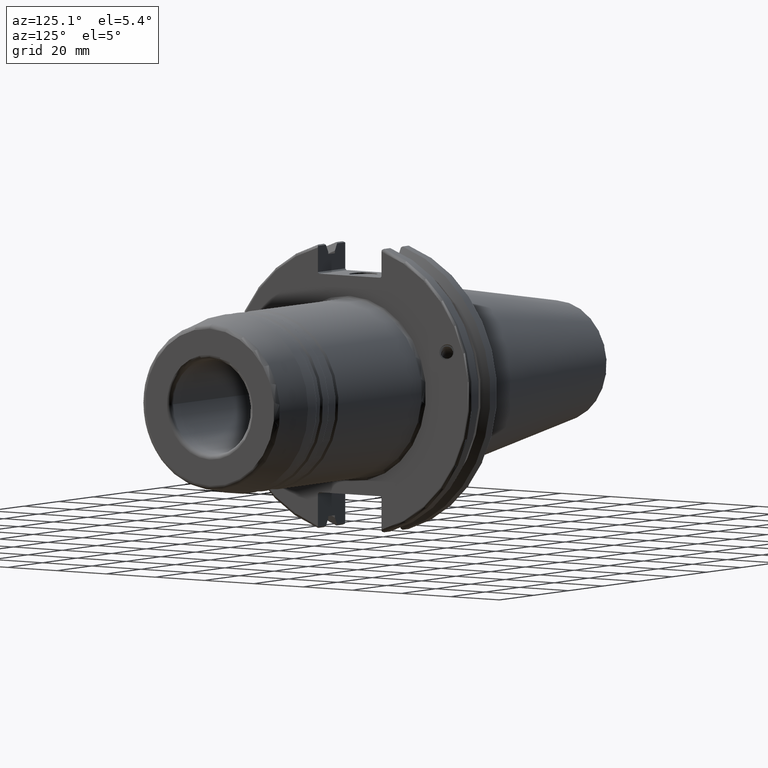
[diagram: clean part render]
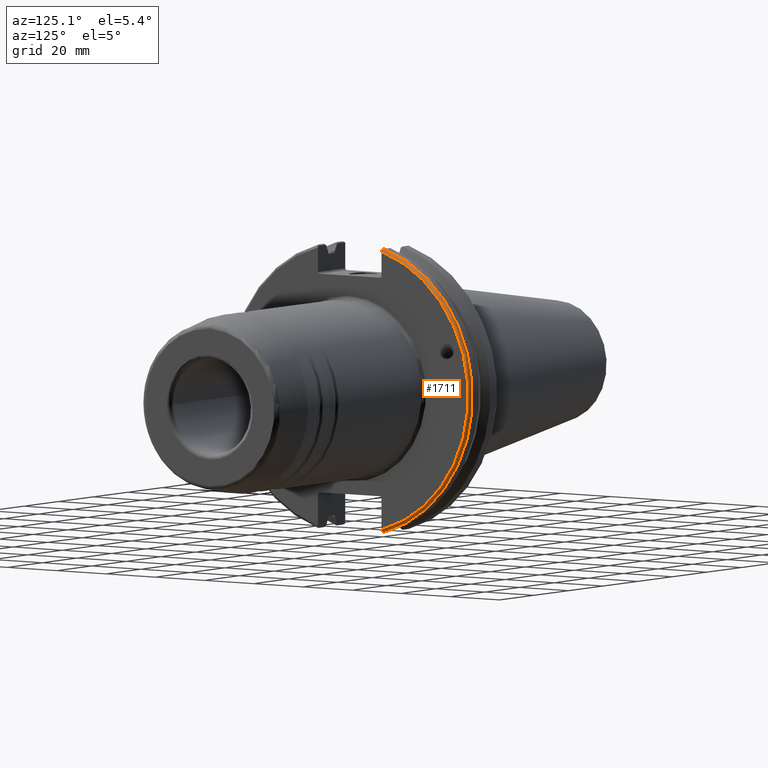
[diagram: same view with one face highlighted and labeled with its STEP entity id]
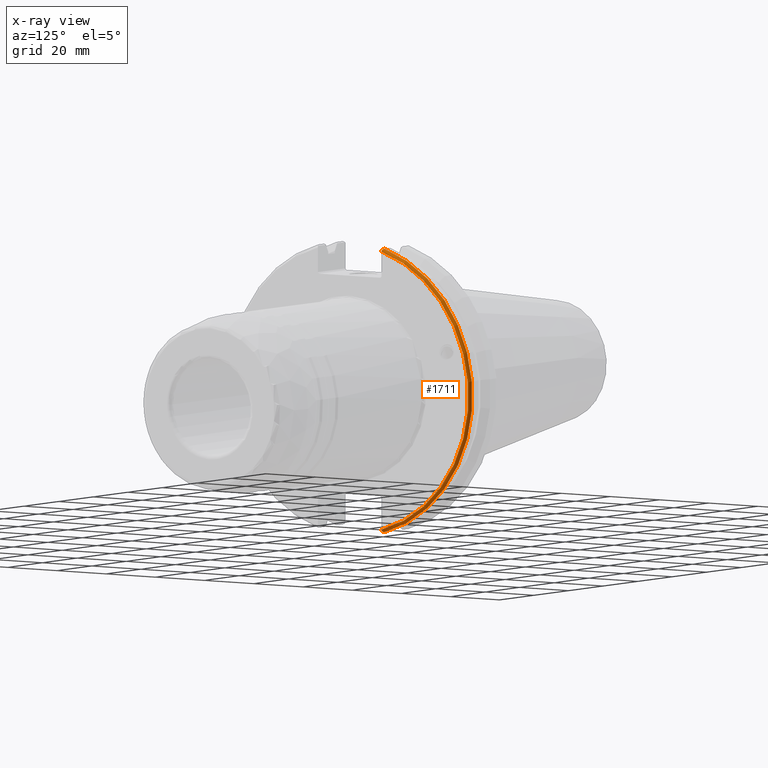
[diagram: x-ray of the same camera — body ghosted, the highlighted face saturated]
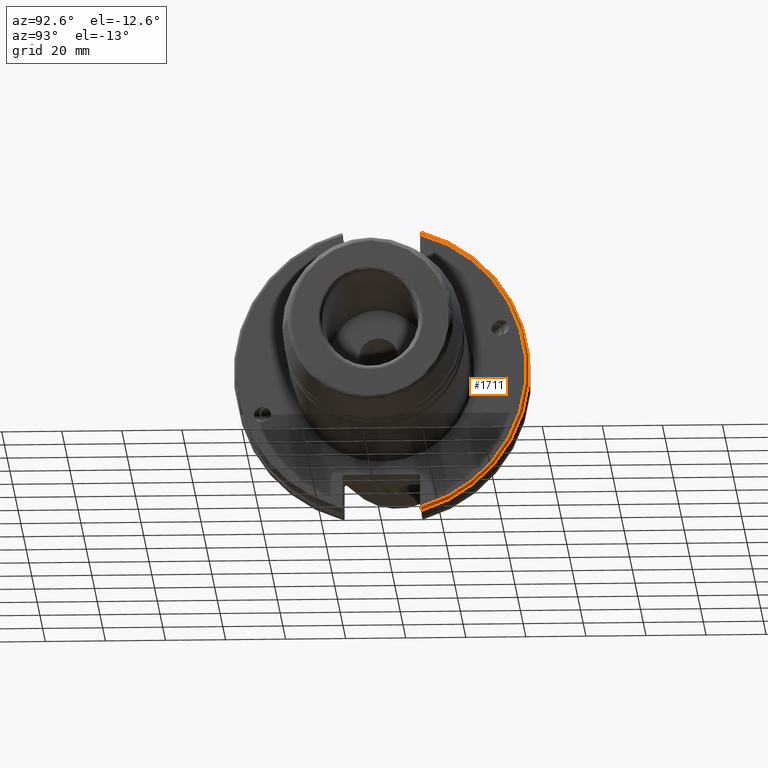
[diagram: same view with one face highlighted and labeled with its STEP entity id]
A machine part, auxiliary view. The second image highlights one B-rep face of the part: STEP entity #1711.
The next image is the same camera in x-ray: the body ghosted, the highlighted face saturated — about 0% of this face is hidden behind the body in this view.
A second angle (auxiliary view) of the same face is appended — the face is thin or edge-on in the first view.
In plain terms, the highlighted toroidal blend (fillet) surface has major radius 48.2125 mm and minor (blend) radius 1 mm.
Its self-contained STEP definition (entity closure, byte-faithful):
#35=B_SPLINE_CURVE_WITH_KNOTS('',3,(#2970,#2971,#2972,#2973,#2974,#2975),
 .UNSPECIFIED.,.F.,.F.,(4,2,4),(0.0976892167532868,0.112000071948293,0.150881870548587),
 .UNSPECIFIED.);
#36=B_SPLINE_CURVE_WITH_KNOTS('',3,(#2977,#2978,#2979,#2980,#2981,#2982),
 .UNSPECIFIED.,.F.,.F.,(4,2,4),(0.452859340315922,0.491741138916218,0.506051994111223),
 .UNSPECIFIED.);
#37=B_SPLINE_CURVE_WITH_KNOTS('',3,(#2984,#2985,#2986,#2987,#2988,#2989,
#2990,#2991),.UNSPECIFIED.,.F.,.F.,(4,2,2,4),(-0.104075769062722,-0.0730268503455479,
-0.0343639873656263,0.),.UNSPECIFIED.);
#38=B_SPLINE_CURVE_WITH_KNOTS('',3,(#2994,#2995,#2996,#2997,#2998,#2999,
#3000,#3001),.UNSPECIFIED.,.F.,.F.,(4,2,2,4),(0.,0.0343639873656263,0.0730268503455477,
0.104075769062723),.UNSPECIFIED.);
#99=TOROIDAL_SURFACE('',#1937,48.2125,1.);
#214=FACE_OUTER_BOUND('',#331,.T.);
#331=EDGE_LOOP('',(#1398,#1399,#1400,#1401,#1402,#1403));
#627=CIRCLE('',#1868,48.2125);
#650=CIRCLE('',#1938,49.2125);
#725=VERTEX_POINT('',#2715);
#726=VERTEX_POINT('',#2716);
#789=VERTEX_POINT('',#2969);
#790=VERTEX_POINT('',#2976);
#791=VERTEX_POINT('',#2983);
#792=VERTEX_POINT('',#2992);
#921=EDGE_CURVE('',#725,#726,#627,.T.);
#1006=EDGE_CURVE('',#789,#725,#35,.T.);
#1007=EDGE_CURVE('',#726,#790,#36,.T.);
#1008=EDGE_CURVE('',#790,#791,#37,.T.);
#1009=EDGE_CURVE('',#791,#792,#650,.T.);
#1010=EDGE_CURVE('',#792,#789,#38,.T.);
#1398=ORIENTED_EDGE('',*,*,#1006,.T.);
#1399=ORIENTED_EDGE('',*,*,#921,.T.);
#1400=ORIENTED_EDGE('',*,*,#1007,.T.);
#1401=ORIENTED_EDGE('',*,*,#1008,.T.);
#1402=ORIENTED_EDGE('',*,*,#1009,.T.);
#1403=ORIENTED_EDGE('',*,*,#1010,.T.);
#1711=ADVANCED_FACE('',(#214),#99,.T.);
#1868=AXIS2_PLACEMENT_3D('',#2717,#2202,#2203);
#1937=AXIS2_PLACEMENT_3D('',#2968,#2378,#2379);
#1938=AXIS2_PLACEMENT_3D('',#2993,#2380,#2381);
#2202=DIRECTION('center_axis',(-1.,0.,0.));
#2203=DIRECTION('ref_axis',(0.,1.,-6.12323399573677E-17));
#2378=DIRECTION('center_axis',(1.,0.,0.));
#2379=DIRECTION('ref_axis',(0.,0.,-1.));
#2380=DIRECTION('center_axis',(1.,0.,0.));
#2381=DIRECTION('ref_axis',(0.,1.,-6.12323399573677E-17));
#2715=CARTESIAN_POINT('',(19.05,12.95,46.4407434937254));
#2716=CARTESIAN_POINT('',(19.05,12.95,-46.4407434937254));
#2717=CARTESIAN_POINT('Origin',(19.05,0.,0.));
#2968=CARTESIAN_POINT('Origin',(18.05,0.,0.));
#2969=CARTESIAN_POINT('',(18.9055020570566,12.95,46.9780755322918));
#2970=CARTESIAN_POINT('Ctrl Pts',(18.9055020570566,12.95,46.9780755322918));
#2971=CARTESIAN_POINT('Ctrl Pts',(18.9315844351616,12.95,46.9333752207329));
#2972=CARTESIAN_POINT('Ctrl Pts',(18.9538432708766,12.95,46.887363294568));
#2973=CARTESIAN_POINT('Ctrl Pts',(19.0204646992875,12.95,46.7230464903732));
#2974=CARTESIAN_POINT('Ctrl Pts',(19.05,12.95,46.5703494890597));
#2975=CARTESIAN_POINT('Ctrl Pts',(19.05,12.95,46.4407434937254));
#2976=CARTESIAN_POINT('',(18.9055020570566,12.95,-46.9780755322918));
#2977=CARTESIAN_POINT('Ctrl Pts',(19.05,12.95,-46.4407434937254));
#2978=CARTESIAN_POINT('Ctrl Pts',(19.05,12.95,-46.5703494890597));
#2979=CARTESIAN_POINT('Ctrl Pts',(19.0204646992875,12.95,-46.7230464903732));
#2980=CARTESIAN_POINT('Ctrl Pts',(18.9538432708766,12.95,-46.887363294568));
#2981=CARTESIAN_POINT('Ctrl Pts',(18.9315844351616,12.95,-46.9333752207329));
#2982=CARTESIAN_POINT('Ctrl Pts',(18.9055020570566,12.95,-46.9780755322918));
#2983=CARTESIAN_POINT('',(18.05,13.4317035994433,-47.3440544806494));
#2984=CARTESIAN_POINT('Ctrl Pts',(18.9055020570566,12.95,-46.9780755322918));
#2985=CARTESIAN_POINT('Ctrl Pts',(18.8571496772125,13.0300321736484,-47.0388807469102));
#2986=CARTESIAN_POINT('Ctrl Pts',(18.792640282015,13.1083611826073,-47.0983919657547));
#2987=CARTESIAN_POINT('Ctrl Pts',(18.6399248789208,13.2478194810695,-47.2043467509586));
#2988=CARTESIAN_POINT('Ctrl Pts',(18.5186188350904,13.3242014686232,-47.2623787015413));
#2989=CARTESIAN_POINT('Ctrl Pts',(18.2983889675417,13.4067722493645,-47.3251126473446));
#2990=CARTESIAN_POINT('Ctrl Pts',(18.1645466245521,13.4317035994433,-47.3440544806494));
#2991=CARTESIAN_POINT('Ctrl Pts',(18.05,13.4317035994433,-47.3440544806494));
#2992=CARTESIAN_POINT('',(18.05,13.4317035994433,47.3440544806494));
#2993=CARTESIAN_POINT('Origin',(18.05,0.,0.));
#2994=CARTESIAN_POINT('Ctrl Pts',(18.05,13.4317035994433,47.3440544806494));
#2995=CARTESIAN_POINT('Ctrl Pts',(18.1645466245521,13.4317035994433,47.3440544806494));
#2996=CARTESIAN_POINT('Ctrl Pts',(18.2983889675417,13.4067722493645,47.3251126473446));
#2997=CARTESIAN_POINT('Ctrl Pts',(18.5186188350904,13.3242014686233,47.2623787015413));
#2998=CARTESIAN_POINT('Ctrl Pts',(18.6399248789208,13.2478194810695,47.2043467509586));
#2999=CARTESIAN_POINT('Ctrl Pts',(18.792640282015,13.1083611826073,47.0983919657547));
#3000=CARTESIAN_POINT('Ctrl Pts',(18.8571496772125,13.0300321736484,47.0388807469102));
#3001=CARTESIAN_POINT('Ctrl Pts',(18.9055020570566,12.95,46.9780755322918));